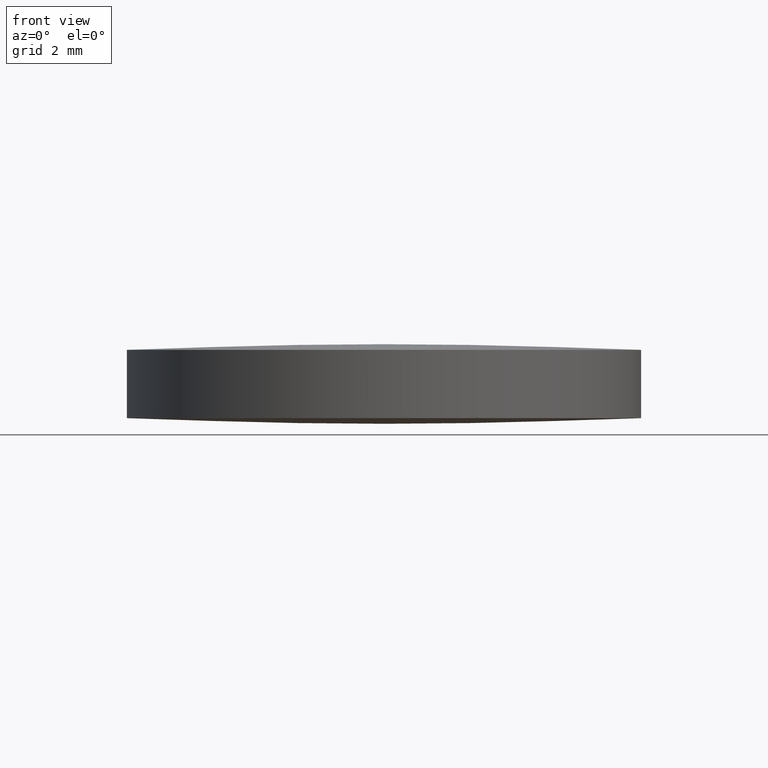
[diagram: clean part render]
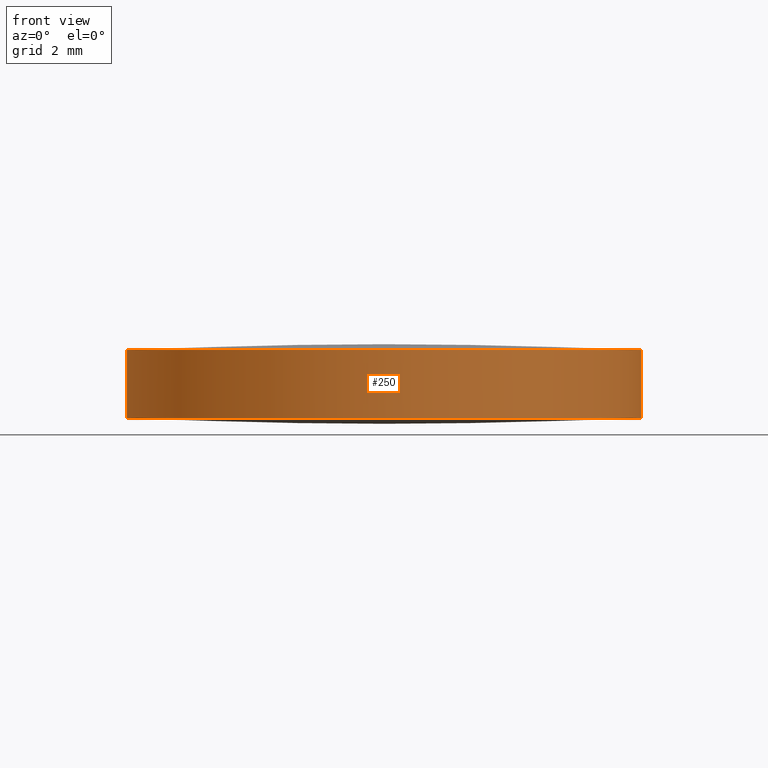
[diagram: same view with one face highlighted and labeled with its STEP entity id]
A machine part, front view. The second image highlights one B-rep face of the part: STEP entity #250.
In plain terms, the highlighted cylindrical surface (partial cylindrical patch) has radius 6.35 mm, axis along (0, 0, 1).
Its self-contained STEP definition (entity closure, byte-faithful):
#1 = ORIENTED_EDGE ( 'NONE', *, *, #227, .F. ) ;
#6 = AXIS2_PLACEMENT_3D ( 'NONE', #287, #16, #84 ) ;
#12 = VERTEX_POINT ( 'NONE', #257 ) ;
#15 = DIRECTION ( 'NONE',  ( 1.000000000000000000, 0.0000000000000000000, 0.0000000000000000000 ) ) ;
#16 = DIRECTION ( 'NONE',  ( -0.0000000000000000000, -0.0000000000000000000, -1.000000000000000000 ) ) ;
#18 = DIRECTION ( 'NONE',  ( 1.000000000000000000, 0.0000000000000000000, 0.0000000000000000000 ) ) ;
#34 = DIRECTION ( 'NONE',  ( -0.0000000000000000000, -0.0000000000000000000, -1.000000000000000000 ) ) ;
#35 = CYLINDRICAL_SURFACE ( 'NONE', #274, 6.349999999999999600 ) ;
#40 = DIRECTION ( 'NONE',  ( 1.000000000000000000, 0.0000000000000000000, 0.0000000000000000000 ) ) ;
#45 = CARTESIAN_POINT ( 'NONE',  ( 6.349999999999999600, 1.221245327087670000E-015, 0.1560202719460870000 ) ) ;
#55 = AXIS2_PLACEMENT_3D ( 'NONE', #82, #286, #15 ) ;
#61 = DIRECTION ( 'NONE',  ( 0.0000000000000000000, 0.0000000000000000000, 1.000000000000000000 ) ) ;
#65 = EDGE_CURVE ( 'NONE', #226, #283, #188, .T. ) ;
#82 = CARTESIAN_POINT ( 'NONE',  ( 2.498001805406600200E-016, 1.221245327087670000E-015, 1.843979728053910100 ) ) ;
#84 = DIRECTION ( 'NONE',  ( 1.000000000000000000, 0.0000000000000000000, 0.0000000000000000000 ) ) ;
#96 = ORIENTED_EDGE ( 'NONE', *, *, #234, .F. ) ;
#102 = CARTESIAN_POINT ( 'NONE',  ( 6.349999999999999600, 1.221245327087670000E-015, 0.1560202719460870000 ) ) ;
#112 = EDGE_CURVE ( 'NONE', #283, #12, #262, .T. ) ;
#114 = VERTEX_POINT ( 'NONE', #205 ) ;
#119 = DIRECTION ( 'NONE',  ( 0.0000000000000000000, 0.0000000000000000000, 1.000000000000000000 ) ) ;
#133 = DIRECTION ( 'NONE',  ( 1.000000000000000000, 8.881784197001252300E-016, 0.0000000000000000000 ) ) ;
#138 = AXIS2_PLACEMENT_3D ( 'NONE', #261, #34, #133 ) ;
#143 = CARTESIAN_POINT ( 'NONE',  ( -1.703471866693090100E-014, -6.350000000000194200, 1.843979728053914100 ) ) ;
#151 = ORIENTED_EDGE ( 'NONE', *, *, #186, .F. ) ;
#159 = CARTESIAN_POINT ( 'NONE',  ( 2.498001805406600200E-016, 1.221245327087670000E-015, 0.1560202719460870000 ) ) ;
#163 = VECTOR ( 'NONE', #289, 1000.000000000000000 ) ;
#164 = EDGE_LOOP ( 'NONE', ( #1, #96, #151, #219, #263, #194 ) ) ;
#173 = LINE ( 'NONE', #102, #163 ) ;
#178 = CIRCLE ( 'NONE', #6, 6.349999999999999600 ) ;
#179 = CARTESIAN_POINT ( 'NONE',  ( -6.349999999999999600, 1.998896044546239400E-015, 0.1560202719460870000 ) ) ;
#180 = AXIS2_PLACEMENT_3D ( 'NONE', #240, #182, #40 ) ;
#182 = DIRECTION ( 'NONE',  ( -0.0000000000000000000, -0.0000000000000000000, -1.000000000000000000 ) ) ;
#186 = EDGE_CURVE ( 'NONE', #280, #114, #178, .T. ) ;
#188 = CIRCLE ( 'NONE', #55, 6.349999999999999600 ) ;
#194 = ORIENTED_EDGE ( 'NONE', *, *, #112, .T. ) ;
#197 = VECTOR ( 'NONE', #61, 1000.000000000000000 ) ;
#205 = CARTESIAN_POINT ( 'NONE',  ( 1.703471866693095400E-014, -6.349999999999920600, 0.1560202719460852300 ) ) ;
#214 = CIRCLE ( 'NONE', #180, 6.349999999999999600 ) ;
#219 = ORIENTED_EDGE ( 'NONE', *, *, #251, .T. ) ;
#226 = VERTEX_POINT ( 'NONE', #288 ) ;
#227 = EDGE_CURVE ( 'NONE', #233, #12, #265, .T. ) ;
#233 = VERTEX_POINT ( 'NONE', #266 ) ;
#234 = EDGE_CURVE ( 'NONE', #114, #233, #214, .T. ) ;
#238 = FACE_OUTER_BOUND ( 'NONE', #164, .T. ) ;
#240 = CARTESIAN_POINT ( 'NONE',  ( 2.498001805406600200E-016, 1.221245327087670000E-015, 0.1560202719460870000 ) ) ;
#250 = ADVANCED_FACE ( 'NONE', ( #238 ), #35, .T. ) ;
#251 = EDGE_CURVE ( 'NONE', #280, #226, #173, .T. ) ;
#257 = CARTESIAN_POINT ( 'NONE',  ( -6.349999999999999600, 1.998896044546239400E-015, 1.843979728053910100 ) ) ;
#261 = CARTESIAN_POINT ( 'NONE',  ( 2.498001805406600200E-016, 1.221245327087670000E-015, 1.843979728053910100 ) ) ;
#262 = CIRCLE ( 'NONE', #138, 6.349999999999999600 ) ;
#263 = ORIENTED_EDGE ( 'NONE', *, *, #65, .T. ) ;
#265 = LINE ( 'NONE', #179, #197 ) ;
#266 = CARTESIAN_POINT ( 'NONE',  ( -6.349999999999999600, 1.998896044546239400E-015, 0.1560202719460870000 ) ) ;
#274 = AXIS2_PLACEMENT_3D ( 'NONE', #159, #119, #18 ) ;
#280 = VERTEX_POINT ( 'NONE', #45 ) ;
#283 = VERTEX_POINT ( 'NONE', #143 ) ;
#286 = DIRECTION ( 'NONE',  ( -0.0000000000000000000, -0.0000000000000000000, -1.000000000000000000 ) ) ;
#287 = CARTESIAN_POINT ( 'NONE',  ( 2.498001805406600200E-016, 1.221245327087670000E-015, 0.1560202719460870000 ) ) ;
#288 = CARTESIAN_POINT ( 'NONE',  ( 6.349999999999999600, 1.221245327087670000E-015, 1.843979728053910100 ) ) ;
#289 = DIRECTION ( 'NONE',  ( 0.0000000000000000000, 0.0000000000000000000, 1.000000000000000000 ) ) ;